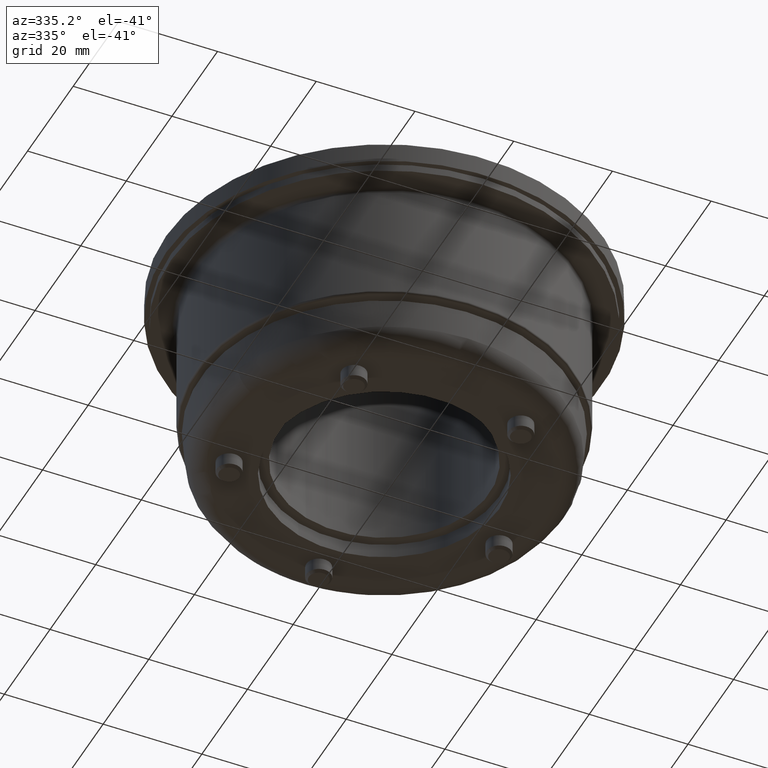
[diagram: clean part render]
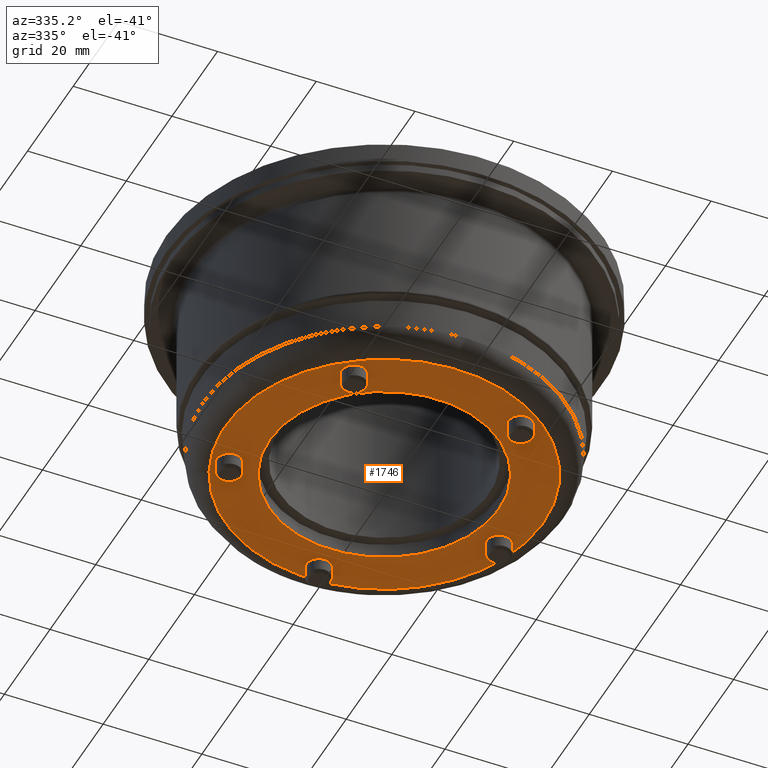
[diagram: same view with one face highlighted and labeled with its STEP entity id]
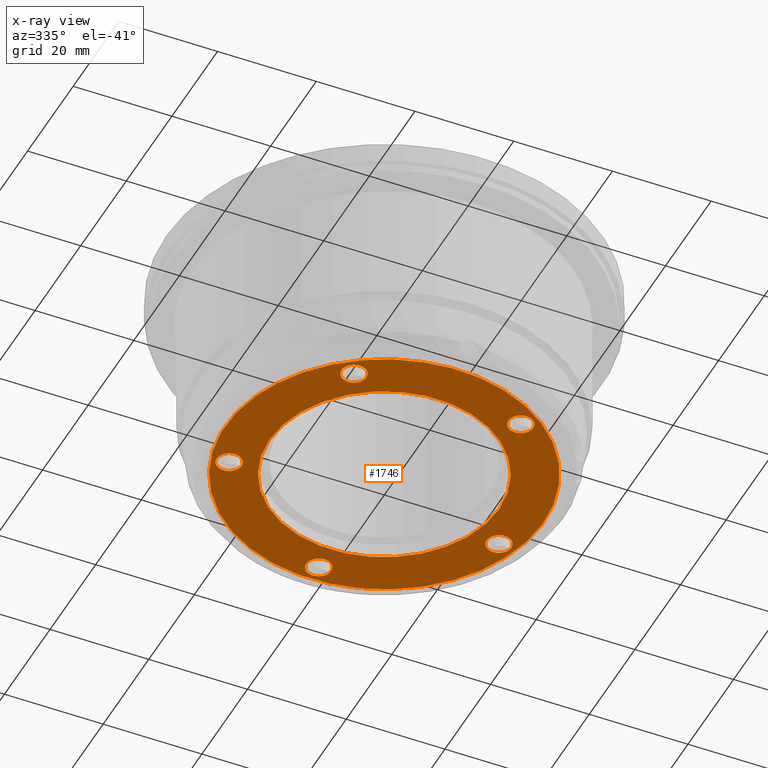
[diagram: x-ray of the same camera — body ghosted, the highlighted face saturated]
A machine part, auxiliary view. The second image highlights one B-rep face of the part: STEP entity #1746.
The next image is the same camera in x-ray: the body ghosted, the highlighted face saturated — about 0% of this face is hidden behind the body in this view.
In plain terms, the highlighted planar face has unit normal (0, -0, -1).
Its self-contained STEP definition (entity closure, byte-faithful):
#296=FACE_BOUND('',#520,.T.);
#297=FACE_BOUND('',#521,.T.);
#298=FACE_BOUND('',#522,.T.);
#299=FACE_BOUND('',#523,.T.);
#300=FACE_BOUND('',#524,.T.);
#301=FACE_BOUND('',#525,.T.);
#336=PLANE('',#2070);
#405=FACE_OUTER_BOUND('',#519,.T.);
#519=EDGE_LOOP('',(#1488,#1489));
#520=EDGE_LOOP('',(#1490));
#521=EDGE_LOOP('',(#1491));
#522=EDGE_LOOP('',(#1492));
#523=EDGE_LOOP('',(#1493));
#524=EDGE_LOOP('',(#1494));
#525=EDGE_LOOP('',(#1495));
#674=CIRCLE('',#2035,23.25);
#677=CIRCLE('',#2039,2.5);
#679=CIRCLE('',#2042,2.5);
#681=CIRCLE('',#2045,2.5);
#683=CIRCLE('',#2048,2.5);
#685=CIRCLE('',#2051,2.5);
#696=CIRCLE('',#2066,32.2555702746228);
#697=CIRCLE('',#2067,32.2555702746228);
#842=VERTEX_POINT('',#3057);
#845=VERTEX_POINT('',#3065);
#847=VERTEX_POINT('',#3071);
#849=VERTEX_POINT('',#3077);
#851=VERTEX_POINT('',#3083);
#853=VERTEX_POINT('',#3089);
#863=VERTEX_POINT('',#3115);
#864=VERTEX_POINT('',#3117);
#1058=EDGE_CURVE('',#842,#842,#674,.T.);
#1063=EDGE_CURVE('',#845,#845,#677,.T.);
#1066=EDGE_CURVE('',#847,#847,#679,.T.);
#1069=EDGE_CURVE('',#849,#849,#681,.T.);
#1072=EDGE_CURVE('',#851,#851,#683,.T.);
#1075=EDGE_CURVE('',#853,#853,#685,.T.);
#1087=EDGE_CURVE('',#863,#864,#696,.T.);
#1088=EDGE_CURVE('',#864,#863,#697,.T.);
#1488=ORIENTED_EDGE('',*,*,#1088,.F.);
#1489=ORIENTED_EDGE('',*,*,#1087,.F.);
#1490=ORIENTED_EDGE('',*,*,#1058,.T.);
#1491=ORIENTED_EDGE('',*,*,#1063,.T.);
#1492=ORIENTED_EDGE('',*,*,#1066,.T.);
#1493=ORIENTED_EDGE('',*,*,#1069,.T.);
#1494=ORIENTED_EDGE('',*,*,#1072,.T.);
#1495=ORIENTED_EDGE('',*,*,#1075,.T.);
#1746=ADVANCED_FACE('',(#405,#296,#297,#298,#299,#300,#301),#336,.T.);
#2035=AXIS2_PLACEMENT_3D('',#3058,#2490,#2491);
#2039=AXIS2_PLACEMENT_3D('',#3067,#2500,#2501);
#2042=AXIS2_PLACEMENT_3D('',#3073,#2507,#2508);
#2045=AXIS2_PLACEMENT_3D('',#3079,#2514,#2515);
#2048=AXIS2_PLACEMENT_3D('',#3085,#2521,#2522);
#2051=AXIS2_PLACEMENT_3D('',#3091,#2528,#2529);
#2066=AXIS2_PLACEMENT_3D('',#3118,#2559,#2560);
#2067=AXIS2_PLACEMENT_3D('',#3119,#2561,#2562);
#2070=AXIS2_PLACEMENT_3D('',#3123,#2567,#2568);
#2490=DIRECTION('center_axis',(-2.78911862918783E-16,1.,0.));
#2491=DIRECTION('ref_axis',(-1.,-2.46716227694473E-16,0.));
#2500=DIRECTION('center_axis',(-2.78911862918783E-16,1.,0.));
#2501=DIRECTION('ref_axis',(-0.309016994374947,3.06607229158471E-17,-0.951056516295154));
#2507=DIRECTION('center_axis',(-2.78911862918783E-16,1.,0.));
#2508=DIRECTION('ref_axis',(0.809016994374947,3.25929425166146E-16,-0.587785252292473));
#2514=DIRECTION('center_axis',(-2.78911862918783E-16,1.,0.));
#2515=DIRECTION('ref_axis',(0.809016994374947,3.25929425166146E-16,0.587785252292473));
#2521=DIRECTION('center_axis',(-2.78911862918783E-16,1.,0.));
#2522=DIRECTION('ref_axis',(-0.309016994374948,3.0660722915847E-17,0.951056516295154));
#2528=DIRECTION('center_axis',(-2.78911862918783E-16,1.,0.));
#2529=DIRECTION('ref_axis',(-1.,-1.5182537088891E-16,0.));
#2559=DIRECTION('center_axis',(-2.78911862918783E-16,1.,0.));
#2560=DIRECTION('ref_axis',(1.,2.78911862918783E-16,1.22464679914735E-16));
#2561=DIRECTION('center_axis',(-2.78911862918783E-16,1.,0.));
#2562=DIRECTION('ref_axis',(1.,2.78911862918783E-16,1.22464679914735E-16));
#2567=DIRECTION('center_axis',(2.78911862918783E-16,-1.,0.));
#2568=DIRECTION('ref_axis',(0.,0.,-1.));
#3057=CARTESIAN_POINT('',(5.75,-2.99999999999999,2.8473038080176E-15));
#3058=CARTESIAN_POINT('Origin',(-17.5,-2.99999999999999,0.));
#3065=CARTESIAN_POINT('',(-44.0703323575483,-3.,11.2618798790176));
#3067=CARTESIAN_POINT('Origin',(-44.8428748434857,-3.,8.88423858827974));
#3071=CARTESIAN_POINT('',(-36.421368489346,-3.,-21.7897754575486));
#3073=CARTESIAN_POINT('Origin',(-34.3988260034086,-2.99999999999999,-23.2592385882797));
#3077=CARTESIAN_POINT('',(-2.62371648252875,-2.99999999999999,-24.7287017190109));
#3079=CARTESIAN_POINT('Origin',(-0.601173996591384,-2.99999999999999,-23.2592385882797));
#3083=CARTESIAN_POINT('',(10.615417329423,-2.99999999999999,6.50659729754186));
#3085=CARTESIAN_POINT('Origin',(9.84287484348568,-2.99999999999999,8.88423858827974));
#3089=CARTESIAN_POINT('',(-15.,-3.,28.75));
#3091=CARTESIAN_POINT('Origin',(-17.5,-3.,28.75));
#3115=CARTESIAN_POINT('',(-17.5,-2.99999999999999,-32.2555702746228));
#3117=CARTESIAN_POINT('',(-49.7555702746228,-3.,0.));
#3118=CARTESIAN_POINT('Origin',(-17.5,-2.99999999999999,0.));
#3119=CARTESIAN_POINT('Origin',(-17.5,-2.99999999999999,0.));
#3123=CARTESIAN_POINT('Origin',(-46.8145302788506,-3.,0.));